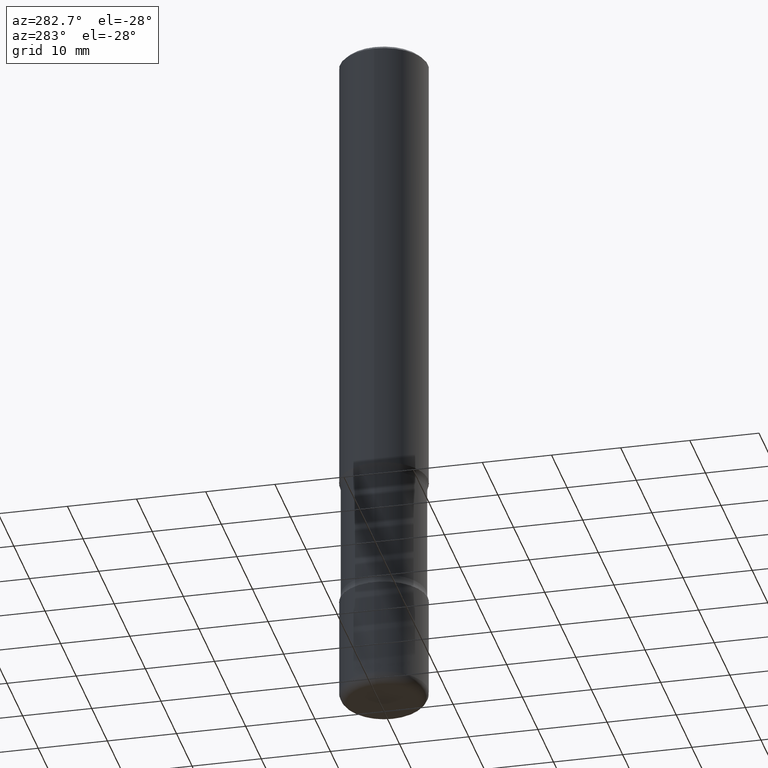
[diagram: clean part render]
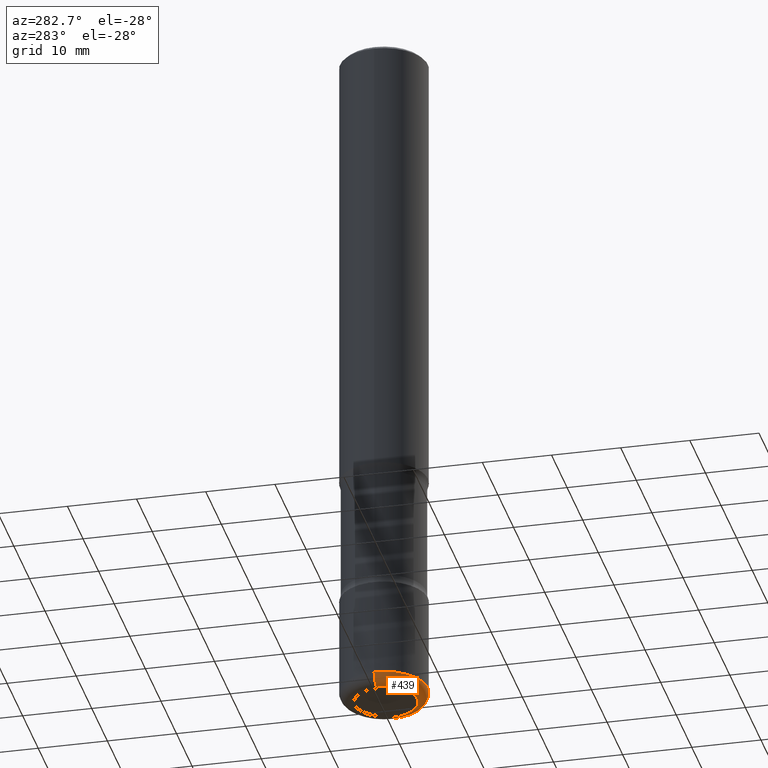
[diagram: same view with one face highlighted and labeled with its STEP entity id]
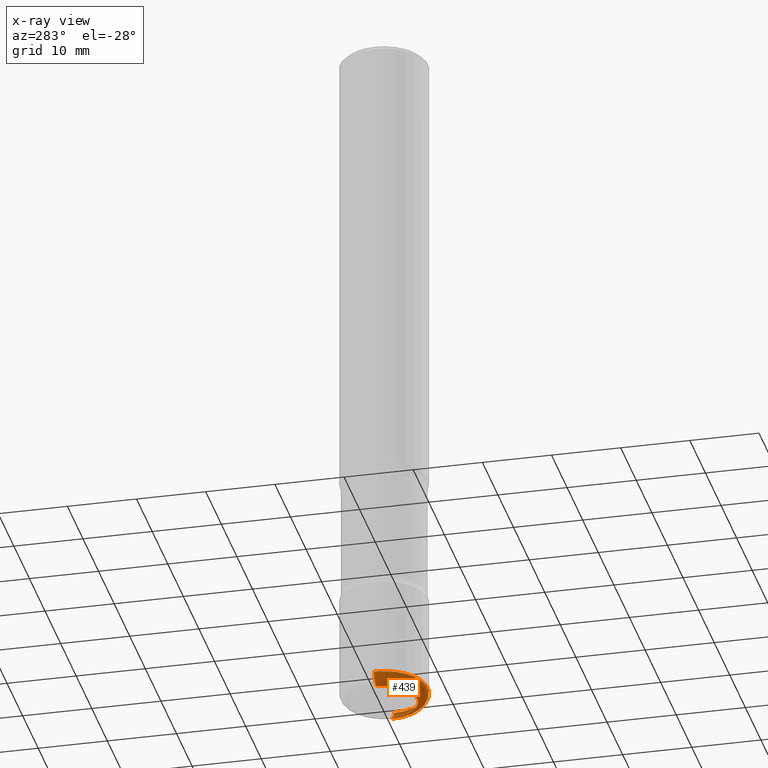
[diagram: x-ray of the same camera — body ghosted, the highlighted face saturated]
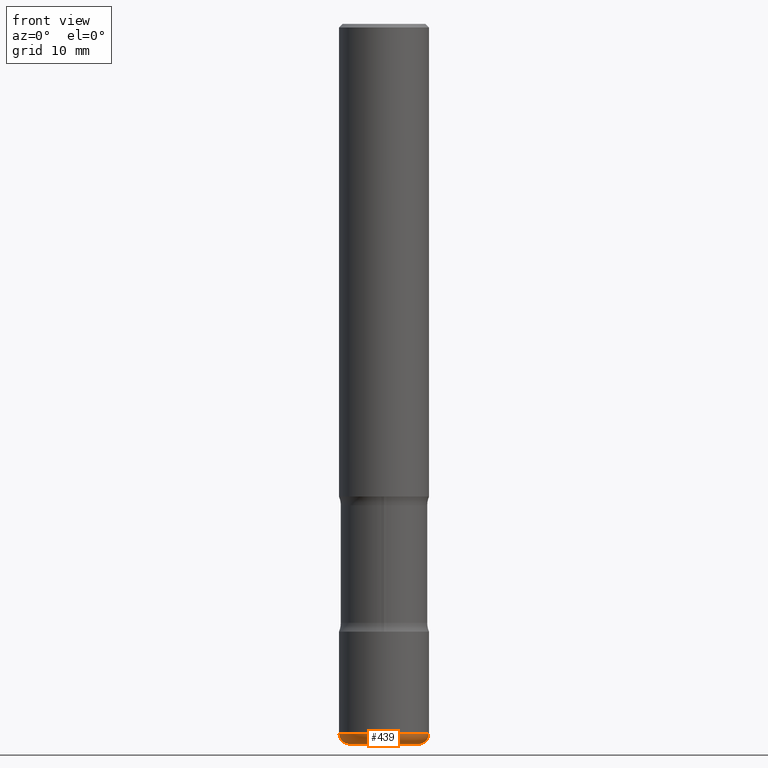
[diagram: same view with one face highlighted and labeled with its STEP entity id]
A machine part, auxiliary view. The second image highlights one B-rep face of the part: STEP entity #439.
The next image is the same camera in x-ray: the body ghosted, the highlighted face saturated — about 0% of this face is hidden behind the body in this view.
A second angle (front view) of the same face is appended — the face is thin or edge-on in the first view.
In plain terms, the highlighted toroidal blend (fillet) surface has major radius 4.826 mm and minor (blend) radius 1.524 mm.
Its self-contained STEP definition (entity closure, byte-faithful):
#11 = ORIENTED_EDGE ( 'NONE', *, *, #44, .F. ) ;
#27 = DIRECTION ( 'NONE',  ( -2.445468806185136597E-29, 3.491481338843145583E-15, 1.000000000000000000 ) ) ;
#43 = AXIS2_PLACEMENT_3D ( 'NONE', #709, #27, #468 ) ;
#44 = EDGE_CURVE ( 'NONE', #332, #95, #604, .T. ) ;
#95 = VERTEX_POINT ( 'NONE', #560 ) ;
#107 = TOROIDAL_SURFACE ( 'NONE', #183, 0.1899999999999999745, 0.05999999999999994227 ) ;
#147 = DIRECTION ( 'NONE',  ( -2.445468806185136597E-29, 3.491481338843145583E-15, 1.000000000000000000 ) ) ;
#163 = VERTEX_POINT ( 'NONE', #620 ) ;
#183 = AXIS2_PLACEMENT_3D ( 'NONE', #522, #147, #349 ) ;
#191 = DIRECTION ( 'NONE',  ( 1.000000000000000000, -6.982962677686263555E-15, 0.000000000000000000 ) ) ;
#240 = DIRECTION ( 'NONE',  ( -6.982962677686266711E-15, -1.000000000000000000, 3.491481338843145583E-15 ) ) ;
#288 = CIRCLE ( 'NONE', #43, 0.1899999999999999745 ) ;
#305 = EDGE_CURVE ( 'NONE', #95, #512, #746, .T. ) ;
#332 = VERTEX_POINT ( 'NONE', #453 ) ;
#341 = CIRCLE ( 'NONE', #800, 0.05999999999999994227 ) ;
#349 = DIRECTION ( 'NONE',  ( 1.000000000000000000, -6.982962677686265133E-15, 4.883557194083112340E-29 ) ) ;
#368 = DIRECTION ( 'NONE',  ( -1.000000000000000000, 7.105427357600997914E-15, 0.000000000000000000 ) ) ;
#370 = CARTESIAN_POINT ( 'NONE',  ( 0.1899999999999999745, -1.508319938380238721E-14, -3.939999999999999947 ) ) ;
#391 = CARTESIAN_POINT ( 'NONE',  ( 9.635147096369438236E-29, -1.375643647504199401E-14, -3.939999999999999947 ) ) ;
#393 = AXIS2_PLACEMENT_3D ( 'NONE', #738, #795, #368 ) ;
#399 = ORIENTED_EDGE ( 'NONE', *, *, #305, .F. ) ;
#401 = FACE_OUTER_BOUND ( 'NONE', #636, .T. ) ;
#415 = EDGE_CURVE ( 'NONE', #332, #163, #288, .T. ) ;
#439 = ADVANCED_FACE ( 'NONE', ( #401 ), #107, .T. ) ;
#453 = CARTESIAN_POINT ( 'NONE',  ( -0.1899999999999999745, -1.229798689653506874E-14, -4.000000000000000000 ) ) ;
#468 = DIRECTION ( 'NONE',  ( 1.000000000000000000, -6.982962677686273021E-15, 0.000000000000000000 ) ) ;
#512 = VERTEX_POINT ( 'NONE', #805 ) ;
#522 = CARTESIAN_POINT ( 'NONE',  ( 9.635147096369438236E-29, -1.375643647504199401E-14, -3.939999999999999947 ) ) ;
#537 = EDGE_CURVE ( 'NONE', #163, #512, #341, .T. ) ;
#560 = CARTESIAN_POINT ( 'NONE',  ( -0.2499999999999999167, -1.198007963564174513E-14, -3.939999999999999947 ) ) ;
#584 = ORIENTED_EDGE ( 'NONE', *, *, #415, .T. ) ;
#604 = CIRCLE ( 'NONE', #393, 0.05999999999999994227 ) ;
#617 = DIRECTION ( 'NONE',  ( 1.000000000000000000, -6.982962677686274599E-15, 0.000000000000000000 ) ) ;
#620 = CARTESIAN_POINT ( 'NONE',  ( 0.1899999999999999745, -1.529268826413297395E-14, -4.000000000000000000 ) ) ;
#636 = EDGE_LOOP ( 'NONE', ( #11, #584, #639, #399 ) ) ;
#639 = ORIENTED_EDGE ( 'NONE', *, *, #537, .T. ) ;
#709 = CARTESIAN_POINT ( 'NONE',  ( 9.781875224740546387E-29, -1.396592535537258233E-14, -4.000000000000000000 ) ) ;
#738 = CARTESIAN_POINT ( 'NONE',  ( -0.1899999999999999745, -1.240640527709780404E-14, -3.939999999999999947 ) ) ;
#746 = CIRCLE ( 'NONE', #786, 0.2499999999999999722 ) ;
#754 = DIRECTION ( 'NONE',  ( -2.445468806185136597E-29, 3.491481338843145583E-15, 1.000000000000000000 ) ) ;
#786 = AXIS2_PLACEMENT_3D ( 'NONE', #391, #754, #191 ) ;
#795 = DIRECTION ( 'NONE',  ( 7.105427357601001859E-15, 1.000000000000000000, -3.491481338843145583E-15 ) ) ;
#800 = AXIS2_PLACEMENT_3D ( 'NONE', #370, #240, #617 ) ;
#805 = CARTESIAN_POINT ( 'NONE',  ( 0.2499999999999999167, -1.550217714446356069E-14, -3.939999999999999947 ) ) ;